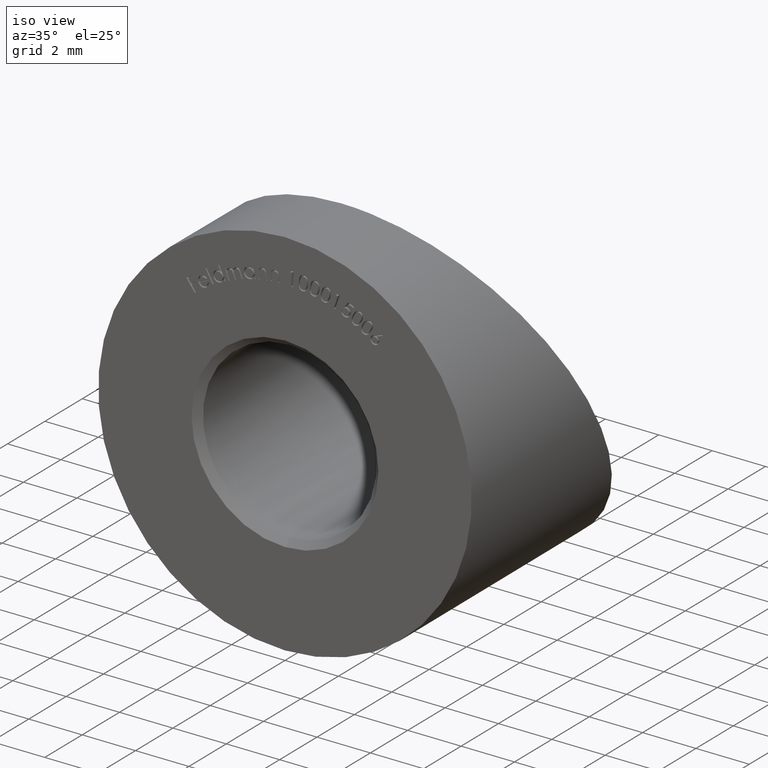
[diagram: clean part render]
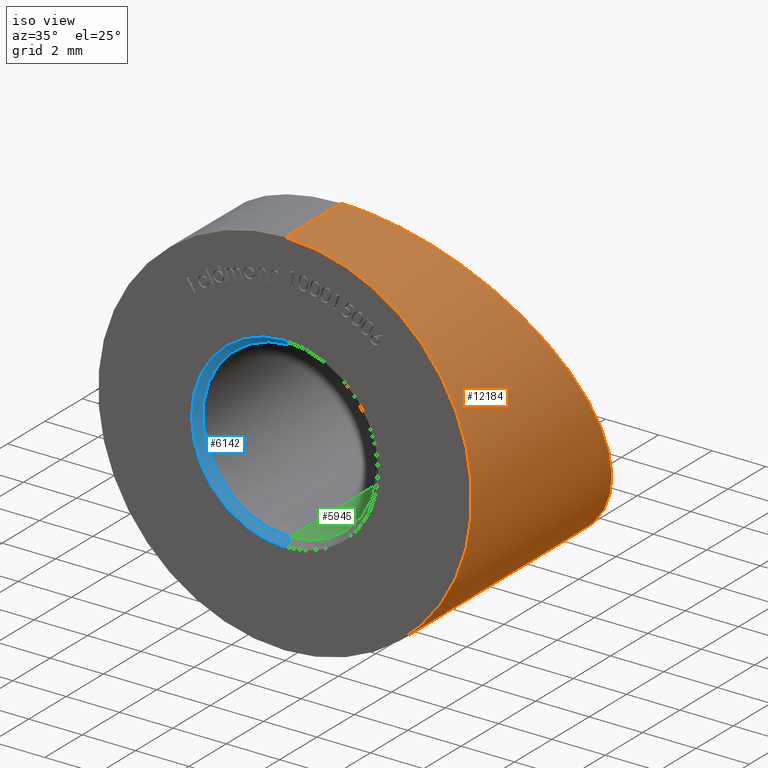
[diagram: same view with three faces highlighted in distinct colors, each labeled with its STEP entity id]
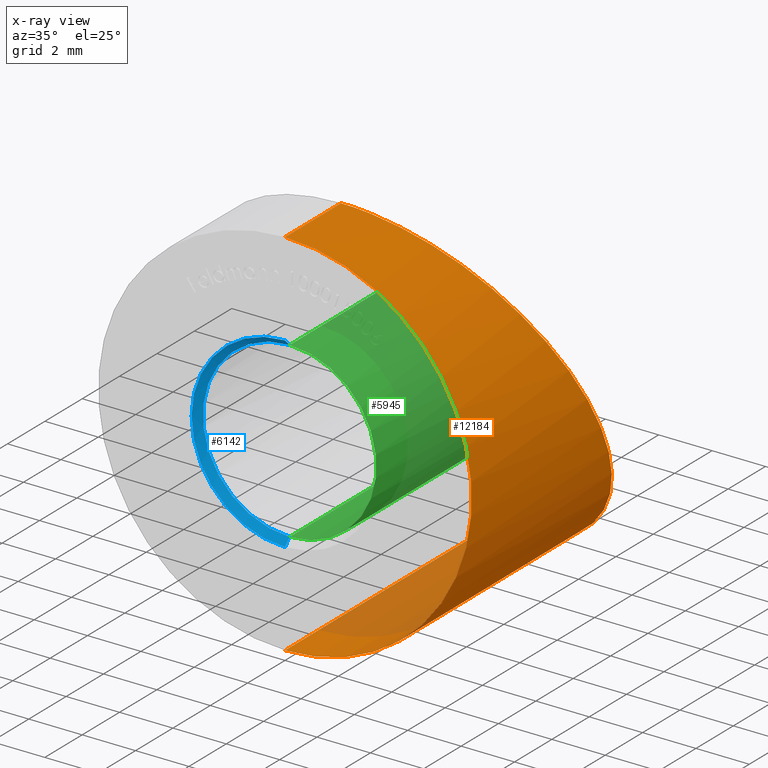
[diagram: x-ray of the same camera — body ghosted, the three highlighted faces saturated]
A machine part, iso view with three faces highlighted in distinct colors.
The next image is the same camera in x-ray (body ghosted, the three faces saturated) — at least one of them is partly hidden behind the body in this view.
Their STEP definitions:

[orange] entity #12184 — the highlighted cylindrical surface (partial cylindrical patch) has radius 7 mm, axis along (-0, -1, -0).
#962 = AXIS2_PLACEMENT_3D ( 'NONE', #10850, #2552, #9796 ) ;
#1754 = ORIENTED_EDGE ( 'NONE', *, *, #9677, .T. ) ;
#1945 = CARTESIAN_POINT ( 'NONE',  ( 14.00000000000000200, 2.999999999999996400, 7.000000000000000900 ) ) ;
#2031 = EDGE_CURVE ( 'NONE', #5110, #10557, #5237, .T. ) ;
#2284 = DIRECTION ( 'NONE',  ( -0.0000000000000000000, -1.000000000000000000, -0.0000000000000000000 ) ) ;
#2552 = DIRECTION ( 'NONE',  ( -0.0000000000000000000, -1.000000000000000000, -0.0000000000000000000 ) ) ;
#2629 = LINE ( 'NONE', #8526, #13405 ) ;
#3113 = CARTESIAN_POINT ( 'NONE',  ( 0.0000000000000000000, 15.00000000000000000, -7.000000000000000000 ) ) ;
#3639 = EDGE_CURVE ( 'NONE', #3906, #11282, #2629, .T. ) ;
#3906 = VERTEX_POINT ( 'NONE', #13491 ) ;
#4367 = FACE_OUTER_BOUND ( 'NONE', #7385, .T. ) ;
#4645 = ORIENTED_EDGE ( 'NONE', *, *, #4783, .T. ) ;
#4783 = EDGE_CURVE ( 'NONE', #5110, #3906, #11608, .T. ) ;
#5110 = VERTEX_POINT ( 'NONE', #9233 ) ;
#5237 = LINE ( 'NONE', #3113, #10162 ) ;
#6075 = CARTESIAN_POINT ( 'NONE',  ( 0.0000000000000000000, 0.0000000000000000000, 0.0000000000000000000 ) ) ;
#7002 = CARTESIAN_POINT ( 'NONE',  ( 8.572527594031473200E-016, 2.999999999999995600, 7.000000000000000000 ) ) ;
#7385 = EDGE_LOOP ( 'NONE', ( #4645, #12433, #1754, #7941 ) ) ;
#7438 = CARTESIAN_POINT ( 'NONE',  ( 8.572527594031473200E-016, 0.0000000000000000000, 7.000000000000000000 ) ) ;
#7941 = ORIENTED_EDGE ( 'NONE', *, *, #2031, .F. ) ;
#8046 = DIRECTION ( 'NONE',  ( 0.0000000000000000000, 0.0000000000000000000, 1.000000000000000000 ) ) ;
#8183 = CARTESIAN_POINT ( 'NONE',  ( 14.00000000000000200, 10.60000000000000700, -7.000000000000002700 ) ) ;
#8432 = CARTESIAN_POINT ( 'NONE',  ( 0.0000000000000000000, 0.0000000000000000000, -7.000000000000000000 ) ) ;
#8526 = CARTESIAN_POINT ( 'NONE',  ( 8.572527594031473200E-016, 15.00000000000000000, 7.000000000000000000 ) ) ;
#9233 = CARTESIAN_POINT ( 'NONE',  ( 0.0000000000000000000, 10.60000000000000500, -7.000000000000000000 ) ) ;
#9541 = DIRECTION ( 'NONE',  ( -0.0000000000000000000, -1.000000000000000000, -0.0000000000000000000 ) ) ;
#9677 = EDGE_CURVE ( 'NONE', #11282, #10557, #12417, .T. ) ;
#9796 = DIRECTION ( 'NONE',  ( 0.0000000000000000000, 0.0000000000000000000, -1.000000000000000000 ) ) ;
#10162 = VECTOR ( 'NONE', #9541, 1000.000000000000000 ) ;
#10259 = CYLINDRICAL_SURFACE ( 'NONE', #962, 7.000000000000000000 ) ;
#10557 = VERTEX_POINT ( 'NONE', #8432 ) ;
#10850 = CARTESIAN_POINT ( 'NONE',  ( 0.0000000000000000000, 15.00000000000000000, 0.0000000000000000000 ) ) ;
#11282 = VERTEX_POINT ( 'NONE', #7438 ) ;
#11312 = DIRECTION ( 'NONE',  ( 0.0000000000000000000, 1.000000000000000000, 0.0000000000000000000 ) ) ;
#11520 = AXIS2_PLACEMENT_3D ( 'NONE', #6075, #11312, #8046 ) ;
#11608 =( BOUNDED_CURVE ( )  B_SPLINE_CURVE ( 3, ( #13434, #8183, #1945, #7002 ),
 .UNSPECIFIED., .F., .F. ) 
 B_SPLINE_CURVE_WITH_KNOTS ( ( 4, 4 ),
 ( 3.141592653589793100, 6.283185307179586200 ),
 .UNSPECIFIED. ) 
 CURVE ( )  GEOMETRIC_REPRESENTATION_ITEM ( )  RATIONAL_B_SPLINE_CURVE ( ( 1.000000000000000000, 0.3333333333333333700, 0.3333333333333333700, 1.000000000000000000 ) ) 
 REPRESENTATION_ITEM ( '' )  );
#12184 = ADVANCED_FACE ( 'NONE', ( #4367 ), #10259, .T. ) ;
#12417 = CIRCLE ( 'NONE', #11520, 7.000000000000000000 ) ;
#12433 = ORIENTED_EDGE ( 'NONE', *, *, #3639, .T. ) ;
#13405 = VECTOR ( 'NONE', #2284, 1000.000000000000000 ) ;
#13434 = CARTESIAN_POINT ( 'NONE',  ( 0.0000000000000000000, 10.60000000000000500, -7.000000000000000000 ) ) ;
#13491 = CARTESIAN_POINT ( 'NONE',  ( 8.572527594031473200E-016, 2.999999999999995600, 7.000000000000000000 ) ) ;

[blue] entity #6142 — the highlighted conical surface has half-angle 45 deg.
#107 = ORIENTED_EDGE ( 'NONE', *, *, #9117, .F. ) ;
#1001 = CARTESIAN_POINT ( 'NONE',  ( 4.286263797015731700E-016, 0.0000000000000000000, 3.499999999999996000 ) ) ;
#1352 = CONICAL_SURFACE ( 'NONE', #11420, 3.250000000000000400, 0.7853981633974466100 ) ;
#1484 = LINE ( 'NONE', #2452, #8324 ) ;
#2259 = DIRECTION ( 'NONE',  ( 0.0000000000000000000, 0.0000000000000000000, 1.000000000000000000 ) ) ;
#2452 = CARTESIAN_POINT ( 'NONE',  ( 0.0000000000000000000, 0.2499999999999967500, -3.250000000000000400 ) ) ;
#3575 = AXIS2_PLACEMENT_3D ( 'NONE', #3983, #10234, #11273 ) ;
#3593 = DIRECTION ( 'NONE',  ( 0.0000000000000000000, 0.0000000000000000000, -1.000000000000000000 ) ) ;
#3983 = CARTESIAN_POINT ( 'NONE',  ( 0.0000000000000000000, 0.2499999999999967500, 0.0000000000000000000 ) ) ;
#4794 = CARTESIAN_POINT ( 'NONE',  ( 3.980102097228898200E-016, 0.2499999999999967500, 3.250000000000000400 ) ) ;
#5226 = EDGE_CURVE ( 'NONE', #13076, #12084, #12786, .T. ) ;
#5418 = EDGE_CURVE ( 'NONE', #7263, #12084, #12300, .T. ) ;
#5447 = DIRECTION ( 'NONE',  ( 0.0000000000000000000, -1.000000000000000000, 0.0000000000000000000 ) ) ;
#5584 = CARTESIAN_POINT ( 'NONE',  ( 0.0000000000000000000, 0.2499999999999967500, 0.0000000000000000000 ) ) ;
#5774 = DIRECTION ( 'NONE',  ( 0.0000000000000000000, -0.7071067811865487900, -0.7071067811865463500 ) ) ;
#5846 = EDGE_LOOP ( 'NONE', ( #6894, #12426, #10484, #107 ) ) ;
#6142 = ADVANCED_FACE ( 'NONE', ( #8354 ), #1352, .F. ) ;
#6235 = VERTEX_POINT ( 'NONE', #7922 ) ;
#6869 = EDGE_CURVE ( 'NONE', #7263, #6235, #8192, .T. ) ;
#6894 = ORIENTED_EDGE ( 'NONE', *, *, #6869, .F. ) ;
#7263 = VERTEX_POINT ( 'NONE', #12228 ) ;
#7922 = CARTESIAN_POINT ( 'NONE',  ( 0.0000000000000000000, 0.2499999999999967500, -3.250000000000000400 ) ) ;
#8192 = CIRCLE ( 'NONE', #3575, 3.250000000000000400 ) ;
#8324 = VECTOR ( 'NONE', #5774, 1000.000000000000000 ) ;
#8354 = FACE_OUTER_BOUND ( 'NONE', #5846, .T. ) ;
#8896 = AXIS2_PLACEMENT_3D ( 'NONE', #11645, #9586, #2259 ) ;
#9117 = EDGE_CURVE ( 'NONE', #6235, #13076, #1484, .T. ) ;
#9586 = DIRECTION ( 'NONE',  ( 0.0000000000000000000, 1.000000000000000000, 0.0000000000000000000 ) ) ;
#10234 = DIRECTION ( 'NONE',  ( 0.0000000000000000000, -1.000000000000000000, 0.0000000000000000000 ) ) ;
#10484 = ORIENTED_EDGE ( 'NONE', *, *, #5226, .F. ) ;
#10534 = CARTESIAN_POINT ( 'NONE',  ( 0.0000000000000000000, 0.0000000000000000000, -3.499999999999996000 ) ) ;
#11273 = DIRECTION ( 'NONE',  ( 0.0000000000000000000, 0.0000000000000000000, 1.000000000000000000 ) ) ;
#11420 = AXIS2_PLACEMENT_3D ( 'NONE', #5584, #5447, #3593 ) ;
#11645 = CARTESIAN_POINT ( 'NONE',  ( 0.0000000000000000000, 0.0000000000000000000, 0.0000000000000000000 ) ) ;
#12084 = VERTEX_POINT ( 'NONE', #1001 ) ;
#12111 = DIRECTION ( 'NONE',  ( 8.659560562354918100E-017, -0.7071067811865487900, 0.7071067811865463500 ) ) ;
#12228 = CARTESIAN_POINT ( 'NONE',  ( 3.980102097228898200E-016, 0.2499999999999967500, 3.250000000000000400 ) ) ;
#12300 = LINE ( 'NONE', #4794, #13281 ) ;
#12426 = ORIENTED_EDGE ( 'NONE', *, *, #5418, .T. ) ;
#12786 = CIRCLE ( 'NONE', #8896, 3.499999999999996000 ) ;
#13076 = VERTEX_POINT ( 'NONE', #10534 ) ;
#13281 = VECTOR ( 'NONE', #12111, 1000.000000000000000 ) ;

[green] entity #5945 — the highlighted cylindrical surface (partial cylindrical patch) has radius 3.25 mm, axis along (-0, -1, -0).
#947 = AXIS2_PLACEMENT_3D ( 'NONE', #7252, #2097, #4129 ) ;
#1288 = EDGE_CURVE ( 'NONE', #6679, #6235, #13436, .T. ) ;
#2008 = CARTESIAN_POINT ( 'NONE',  ( 0.0000000000000000000, 10.60000000000000500, -3.250000000000000400 ) ) ;
#2097 = DIRECTION ( 'NONE',  ( -0.0000000000000000000, -1.000000000000000000, -0.0000000000000000000 ) ) ;
#2112 = CIRCLE ( 'NONE', #6391, 3.250000000000000400 ) ;
#2871 = CARTESIAN_POINT ( 'NONE',  ( 3.980102097228898200E-016, 5.035714285714282900, 3.250000000000000400 ) ) ;
#2947 = ORIENTED_EDGE ( 'NONE', *, *, #10875, .F. ) ;
#3810 = CYLINDRICAL_SURFACE ( 'NONE', #947, 3.250000000000000400 ) ;
#3837 = VERTEX_POINT ( 'NONE', #2871 ) ;
#3855 = CARTESIAN_POINT ( 'NONE',  ( 6.500000000000001800, 5.035714285714282000, 3.250000000000000900 ) ) ;
#4100 = EDGE_CURVE ( 'NONE', #6679, #3837, #12611, .T. ) ;
#4129 = DIRECTION ( 'NONE',  ( 0.0000000000000000000, 0.0000000000000000000, -1.000000000000000000 ) ) ;
#4202 = CARTESIAN_POINT ( 'NONE',  ( 0.0000000000000000000, 8.564285714285714900, -3.250000000000000400 ) ) ;
#5041 = LINE ( 'NONE', #10690, #13381 ) ;
#5296 = DIRECTION ( 'NONE',  ( -0.0000000000000000000, -1.000000000000000000, -0.0000000000000000000 ) ) ;
#5401 = CARTESIAN_POINT ( 'NONE',  ( 0.0000000000000000000, 0.2499999999999967500, 0.0000000000000000000 ) ) ;
#5945 = ADVANCED_FACE ( 'NONE', ( #12461 ), #3810, .F. ) ;
#6235 = VERTEX_POINT ( 'NONE', #7922 ) ;
#6391 = AXIS2_PLACEMENT_3D ( 'NONE', #5401, #8643, #11847 ) ;
#6679 = VERTEX_POINT ( 'NONE', #4202 ) ;
#6870 = CARTESIAN_POINT ( 'NONE',  ( 0.0000000000000000000, 8.564285714285714900, -3.250000000000000400 ) ) ;
#7252 = CARTESIAN_POINT ( 'NONE',  ( 0.0000000000000000000, 10.60000000000000500, 0.0000000000000000000 ) ) ;
#7263 = VERTEX_POINT ( 'NONE', #12228 ) ;
#7922 = CARTESIAN_POINT ( 'NONE',  ( 0.0000000000000000000, 0.2499999999999967500, -3.250000000000000400 ) ) ;
#8005 = CARTESIAN_POINT ( 'NONE',  ( 6.500000000000001800, 8.564285714285714900, -3.250000000000002200 ) ) ;
#8643 = DIRECTION ( 'NONE',  ( 0.0000000000000000000, -1.000000000000000000, 0.0000000000000000000 ) ) ;
#8653 = ORIENTED_EDGE ( 'NONE', *, *, #11752, .T. ) ;
#9562 = ORIENTED_EDGE ( 'NONE', *, *, #4100, .F. ) ;
#10690 = CARTESIAN_POINT ( 'NONE',  ( 3.980102097228898200E-016, 10.60000000000000500, 3.250000000000000400 ) ) ;
#10875 = EDGE_CURVE ( 'NONE', #3837, #7263, #5041, .T. ) ;
#10959 = EDGE_LOOP ( 'NONE', ( #2947, #9562, #13143, #8653 ) ) ;
#11496 = DIRECTION ( 'NONE',  ( -0.0000000000000000000, -1.000000000000000000, -0.0000000000000000000 ) ) ;
#11752 = EDGE_CURVE ( 'NONE', #6235, #7263, #2112, .T. ) ;
#11847 = DIRECTION ( 'NONE',  ( 0.0000000000000000000, 0.0000000000000000000, 1.000000000000000000 ) ) ;
#12228 = CARTESIAN_POINT ( 'NONE',  ( 3.980102097228898200E-016, 0.2499999999999967500, 3.250000000000000400 ) ) ;
#12299 = VECTOR ( 'NONE', #11496, 1000.000000000000000 ) ;
#12461 = FACE_OUTER_BOUND ( 'NONE', #10959, .T. ) ;
#12611 =( BOUNDED_CURVE ( )  B_SPLINE_CURVE ( 3, ( #6870, #8005, #3855, #13302 ),
 .UNSPECIFIED., .F., .F. ) 
 B_SPLINE_CURVE_WITH_KNOTS ( ( 4, 4 ),
 ( 3.141592653589793100, 6.283185307179586200 ),
 .UNSPECIFIED. ) 
 CURVE ( )  GEOMETRIC_REPRESENTATION_ITEM ( )  RATIONAL_B_SPLINE_CURVE ( ( 1.000000000000000000, 0.3333333333333333700, 0.3333333333333333700, 1.000000000000000000 ) ) 
 REPRESENTATION_ITEM ( '' )  );
#13143 = ORIENTED_EDGE ( 'NONE', *, *, #1288, .T. ) ;
#13302 = CARTESIAN_POINT ( 'NONE',  ( 3.980102097228898200E-016, 5.035714285714282900, 3.250000000000000400 ) ) ;
#13381 = VECTOR ( 'NONE', #5296, 1000.000000000000000 ) ;
#13436 = LINE ( 'NONE', #2008, #12299 ) ;